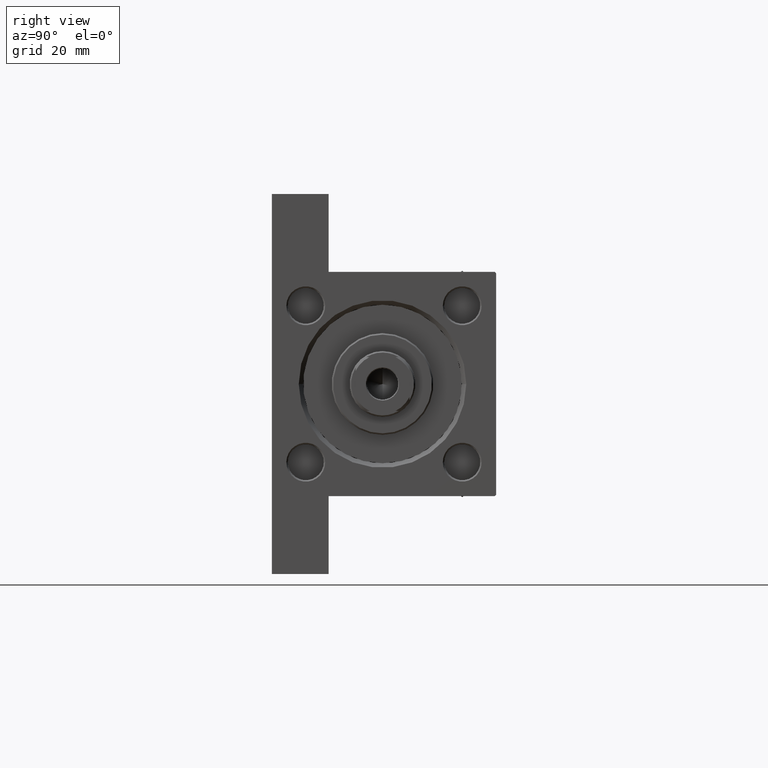
[diagram: clean part render]
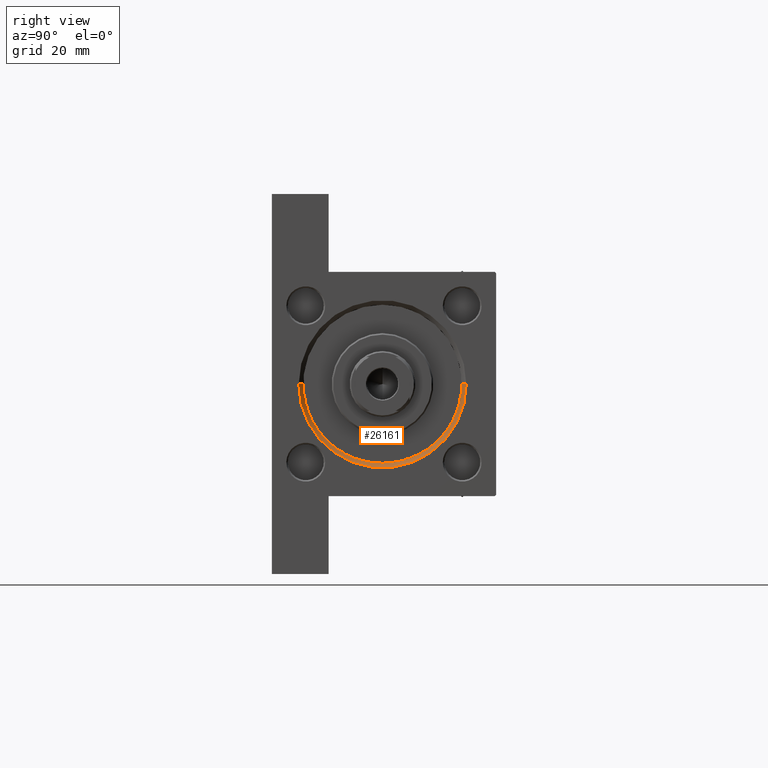
[diagram: same view with one face highlighted and labeled with its STEP entity id]
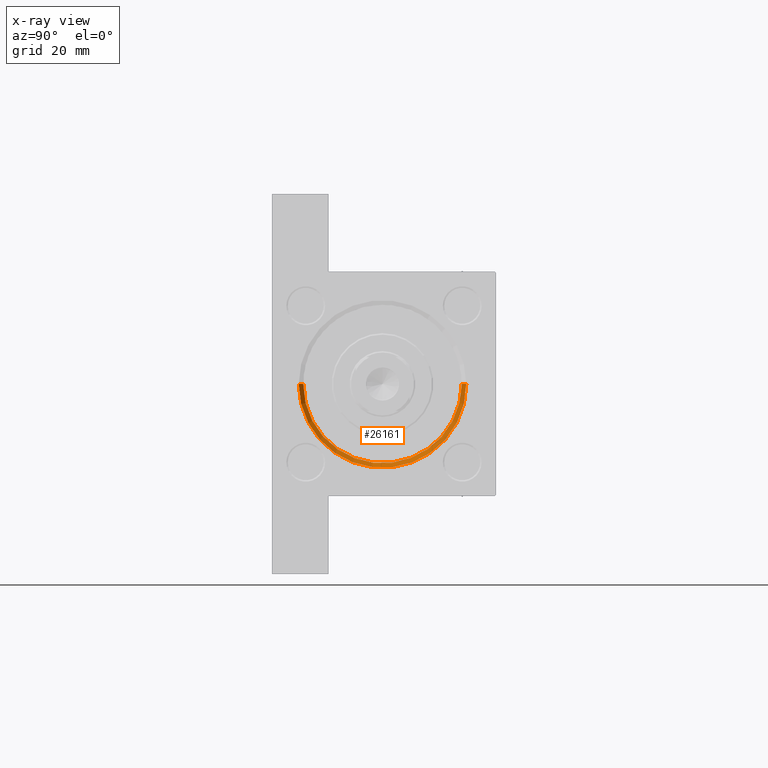
[diagram: x-ray of the same camera — body ghosted, the highlighted face saturated]
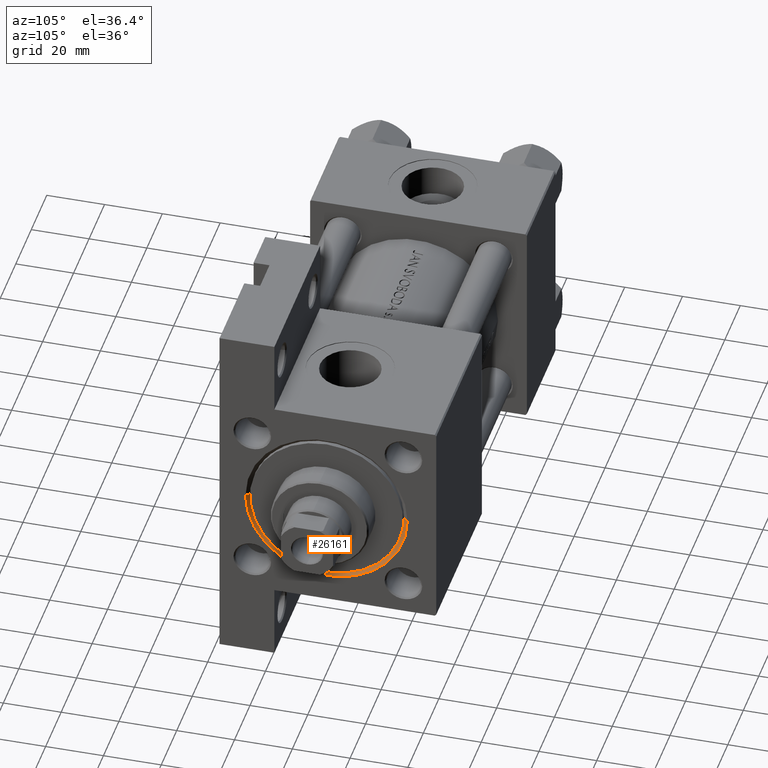
[diagram: same view with one face highlighted and labeled with its STEP entity id]
A machine part, right view. The second image highlights one B-rep face of the part: STEP entity #26161.
The next image is the same camera in x-ray: the body ghosted, the highlighted face saturated — about 0% of this face is hidden behind the body in this view.
A second angle (auxiliary view) of the same face is appended — the face is thin or edge-on in the first view.
In plain terms, the highlighted conical surface has half-angle 45 deg.
Its self-contained STEP definition (entity closure, byte-faithful):
#617 = CARTESIAN_POINT ( 'NONE',  ( 152.5000000000000568, 0.000000000000000000, -27.00000000000000355 ) ) ;
#3211 = DIRECTION ( 'NONE',  ( 0.7071067811865361374, 8.659560562355073374E-17, 0.7071067811865588970 ) ) ;
#4168 = DIRECTION ( 'NONE',  ( 1.000000000000000000, 0.000000000000000000, 0.000000000000000000 ) ) ;
#6290 = CARTESIAN_POINT ( 'NONE',  ( 152.5000000000000568, 3.245314017740486554E-15, 26.00000000000000355 ) ) ;
#6636 = FACE_OUTER_BOUND ( 'NONE', #7348, .T. ) ;
#7348 = EDGE_LOOP ( 'NONE', ( #41098, #42072, #27763, #42788 ) ) ;
#7725 = DIRECTION ( 'NONE',  ( 0.000000000000000000, 0.000000000000000000, 1.000000000000000000 ) ) ;
#8096 = LINE ( 'NONE', #617, #35368 ) ;
#11584 = DIRECTION ( 'NONE',  ( -1.000000000000000000, -0.000000000000000000, 0.000000000000000000 ) ) ;
#12336 = CARTESIAN_POINT ( 'NONE',  ( 152.5000000000000568, 0.000000000000000000, -27.00000000000000355 ) ) ;
#14321 = CARTESIAN_POINT ( 'NONE',  ( 152.5000000000000568, 3.245314017740486554E-15, 26.00000000000000355 ) ) ;
#15247 = AXIS2_PLACEMENT_3D ( 'NONE', #26285, #11584, #7725 ) ;
#17942 = VERTEX_POINT ( 'NONE', #20601 ) ;
#19885 = EDGE_CURVE ( 'NONE', #38318, #17942, #8096, .T. ) ;
#20601 = CARTESIAN_POINT ( 'NONE',  ( 154.0000000000000000, 0.000000000000000000, -28.49999999999999645 ) ) ;
#21790 = LINE ( 'NONE', #14321, #27284 ) ;
#22804 = DIRECTION ( 'NONE',  ( 0.7071067811865361374, 0.000000000000000000, -0.7071067811865588970 ) ) ;
#25616 = AXIS2_PLACEMENT_3D ( 'NONE', #47128, #39412, #47381 ) ;
#26037 = CARTESIAN_POINT ( 'NONE',  ( 154.0000000000000000, 3.429011037612588881E-15, 27.49999999999999645 ) ) ;
#26161 = ADVANCED_FACE ( 'NONE', ( #6636 ), #40988, .F. ) ;
#26285 = CARTESIAN_POINT ( 'NONE',  ( 154.0000000000000000, 0.000000000000000000, -0.5000000000000004441 ) ) ;
#27284 = VECTOR ( 'NONE', #3211, 1000.000000000000114 ) ;
#27660 = VERTEX_POINT ( 'NONE', #6290 ) ;
#27763 = ORIENTED_EDGE ( 'NONE', *, *, #19885, .T. ) ;
#29768 = DIRECTION ( 'NONE',  ( 0.000000000000000000, 0.000000000000000000, 1.000000000000000000 ) ) ;
#29892 = CIRCLE ( 'NONE', #15247, 27.99999999999999645 ) ;
#33362 = CARTESIAN_POINT ( 'NONE',  ( 152.5000000000000568, 0.000000000000000000, -0.5000000000000004441 ) ) ;
#35368 = VECTOR ( 'NONE', #22804, 1000.000000000000114 ) ;
#35715 = EDGE_CURVE ( 'NONE', #38318, #27660, #47355, .T. ) ;
#38318 = VERTEX_POINT ( 'NONE', #12336 ) ;
#38509 = VERTEX_POINT ( 'NONE', #26037 ) ;
#39412 = DIRECTION ( 'NONE',  ( 1.000000000000000000, 0.000000000000000000, 0.000000000000000000 ) ) ;
#40988 = CONICAL_SURFACE ( 'NONE', #25616, 26.50000000000000355, 0.7853981633974644883 ) ;
#41098 = ORIENTED_EDGE ( 'NONE', *, *, #46616, .F. ) ;
#42072 = ORIENTED_EDGE ( 'NONE', *, *, #35715, .F. ) ;
#42490 = EDGE_CURVE ( 'NONE', #38509, #17942, #29892, .T. ) ;
#42788 = ORIENTED_EDGE ( 'NONE', *, *, #42490, .F. ) ;
#45784 = AXIS2_PLACEMENT_3D ( 'NONE', #33362, #4168, #29768 ) ;
#46616 = EDGE_CURVE ( 'NONE', #27660, #38509, #21790, .T. ) ;
#47128 = CARTESIAN_POINT ( 'NONE',  ( 152.5000000000000568, 0.000000000000000000, -0.5000000000000004441 ) ) ;
#47355 = CIRCLE ( 'NONE', #45784, 26.50000000000000355 ) ;
#47381 = DIRECTION ( 'NONE',  ( 0.000000000000000000, 0.000000000000000000, -1.000000000000000000 ) ) ;